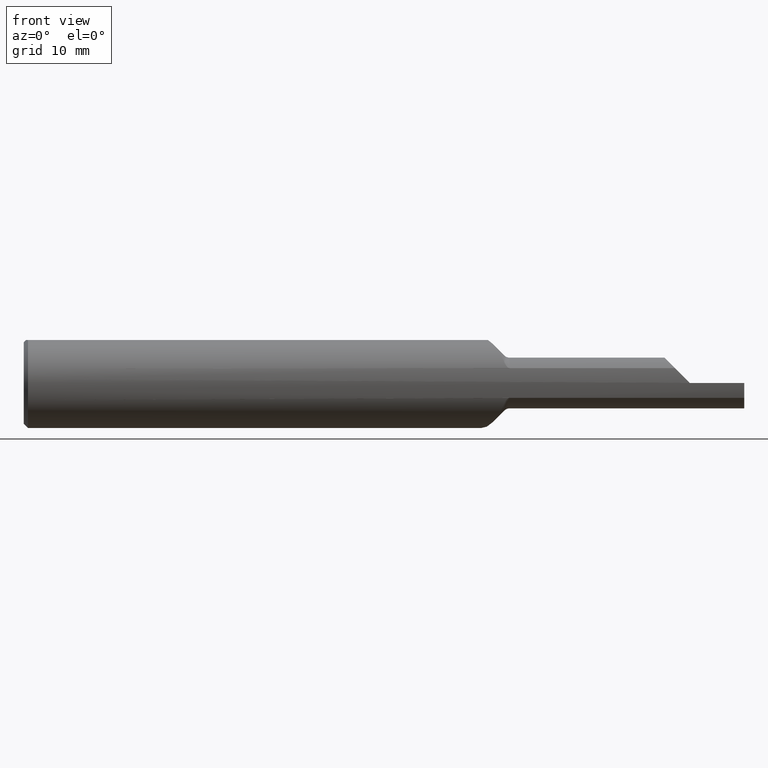
[diagram: clean part render]
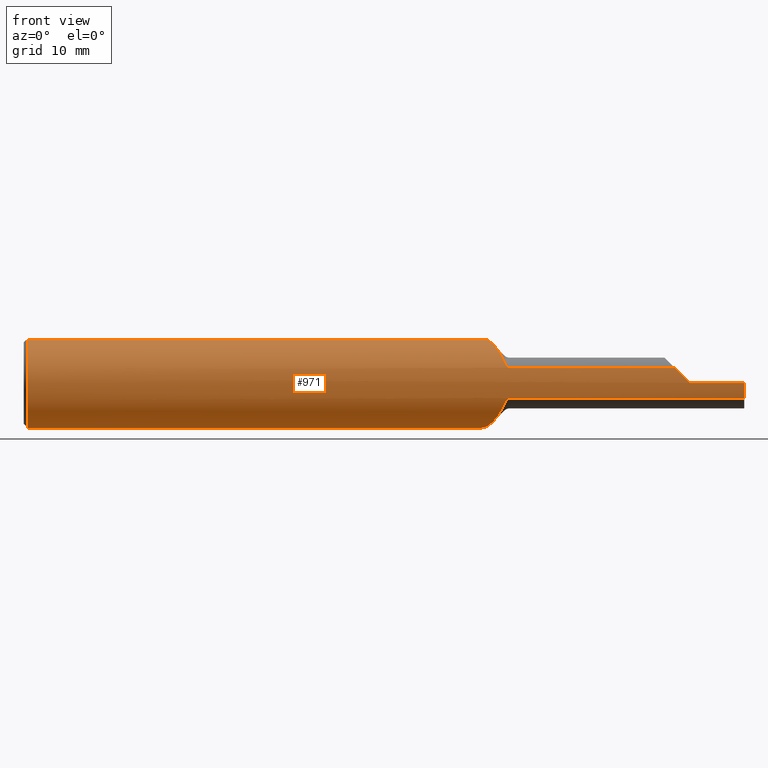
[diagram: same view with one face highlighted and labeled with its STEP entity id]
A machine part, front view. The second image highlights one B-rep face of the part: STEP entity #971.
In plain terms, the highlighted cylindrical surface (partial cylindrical patch) has radius 3.9649 mm, axis along (-1, -0, -0).
Its self-contained STEP definition (entity closure, byte-faithful):
#5 = B_SPLINE_CURVE_WITH_KNOTS ( 'NONE', 3,
 ( #135, #721, #313, #1014, #145, #67, #70, #228 ),
 .UNSPECIFIED., .F., .F.,
 ( 4, 2, 2, 4 ),
 ( 0.0009159196454856685611, 0.002174632397914928565, 0.002803988774129558947, 0.003433345150344188895 ),
 .UNSPECIFIED. ) ;
#7 = EDGE_CURVE ( 'NONE', #907, #171, #895, .T. ) ;
#13 = VERTEX_POINT ( 'NONE', #753 ) ;
#14 = VECTOR ( 'NONE', #52, 39.37007874015748143 ) ;
#24 = CARTESIAN_POINT ( 'NONE',  ( 2.500000000000000000, 0.000000000000000000, 0.000000000000000000 ) ) ;
#25 = CARTESIAN_POINT ( 'NONE',  ( 1.685355339059326996, -0.1472695137976348101, -0.05175809410911725444 ) ) ;
#29 = CARTESIAN_POINT ( 'NONE',  ( 1.532687899053011504, 0.1503590421569865054, 0.04344544607852132700 ) ) ;
#37 = CARTESIAN_POINT ( 'NONE',  ( 1.533879873719947717, 0.1467490068820048454, 0.05438688777439014410 ) ) ;
#38 = CARTESIAN_POINT ( 'NONE',  ( 0.01499999999999970281, 0.000000000000000000, -0.1560999999999999888 ) ) ;
#41 = EDGE_CURVE ( 'NONE', #719, #967, #238, .T. ) ;
#42 = CARTESIAN_POINT ( 'NONE',  ( 1.675397329852515771, -0.1449096853272189289, 0.05807563396208118012 ) ) ;
#44 = CARTESIAN_POINT ( 'NONE',  ( 1.530767765083626886, 0.1561983557981438675, 0.01003359400291371079 ) ) ;
#52 = DIRECTION ( 'NONE',  ( -1.000000000000000000, -0.000000000000000000, -0.000000000000000000 ) ) ;
#61 = EDGE_CURVE ( 'NONE', #434, #163, #133, .T. ) ;
#67 = CARTESIAN_POINT ( 'NONE',  ( 1.661637665821881660, -0.1307140869438640773, 0.08566718864553440893 ) ) ;
#70 = CARTESIAN_POINT ( 'NONE',  ( 1.664782188141721075, -0.1348230305271990170, 0.07906715129515250184 ) ) ;
#73 = ORIENTED_EDGE ( 'NONE', *, *, #756, .T. ) ;
#77 = EDGE_CURVE ( 'NONE', #138, #267, #934, .T. ) ;
#78 = ORIENTED_EDGE ( 'NONE', *, *, #41, .T. ) ;
#85 = CARTESIAN_POINT ( 'NONE',  ( 1.626706199700792776, -0.07609999999999965403, -0.1362938002992067077 ) ) ;
#90 = CARTESIAN_POINT ( 'NONE',  ( 1.630329930302383934, -0.08259003961828272067, -0.1326700696976159666 ) ) ;
#91 = CARTESIAN_POINT ( 'NONE',  ( 1.671402990581742909, -0.1425015136695788887, -0.06385971556122843618 ) ) ;
#93 = ORIENTED_EDGE ( 'NONE', *, *, #61, .F. ) ;
#95 = CARTESIAN_POINT ( 'NONE',  ( 1.667677669529663564, -0.1384498903659921176, -0.07210296705160437747 ) ) ;
#99 = ORIENTED_EDGE ( 'NONE', *, *, #378, .F. ) ;
#101 = LINE ( 'NONE', #569, #608 ) ;
#102 = CARTESIAN_POINT ( 'NONE',  ( 1.548311627111805810, 0.1046679885198931043, -0.1159372447474033979 ) ) ;
#104 = CARTESIAN_POINT ( 'NONE',  ( 2.500000000000000000, 0.000000000000000000, 0.000000000000000000 ) ) ;
#109 = ORIENTED_EDGE ( 'NONE', *, *, #551, .F. ) ;
#110 = DIRECTION ( 'NONE',  ( -1.000000000000000000, -0.000000000000000000, -0.000000000000000000 ) ) ;
#118 = CARTESIAN_POINT ( 'NONE',  ( 1.566100644809369280, 0.05646901596201918394, 0.1459231650556713500 ) ) ;
#119 = EDGE_CURVE ( 'NONE', #564, #667, #859, .T. ) ;
#125 = ORIENTED_EDGE ( 'NONE', *, *, #166, .F. ) ;
#127 = VECTOR ( 'NONE', #611, 39.37007874015748143 ) ;
#133 = B_SPLINE_CURVE_WITH_KNOTS ( 'NONE', 3,
 ( #839, #505, #897, #666, #983, #261, #273, #585, #830, #429, #590, #186, #513, #102, #433, #758, #991, #890, #452, #359, #363, #457, #777, #44, #372, #29, #37, #606, #1009, #848, #196, #696, #192, #1011, #118, #212 ),
 .UNSPECIFIED., .F., .F.,
 ( 4, 2, 2, 2, 2, 2, 2, 2, 2, 2, 2, 2, 2, 2, 2, 2, 2, 4 ),
 ( 0.003110930994557959892, 0.003973681353903181675, 0.004836431713248403458, 0.005699182072593624374, 0.006561932431938847024, 0.007424682791284067940, 0.008287433150629290590, 0.008718808330301900181, 0.009150183509974509771, 0.01001293386931973589, 0.01087568422866495854, 0.01173843458801018466, 0.01260118494735540905, 0.01346393530670063343, 0.01432668566604585782, 0.01518943602539108220, 0.01605218638473630832, 0.01691493674408153097 ),
 .UNSPECIFIED. ) ;
#135 = CARTESIAN_POINT ( 'NONE',  ( 1.626706199700792776, -0.07609999999999968179, 0.1362938002992067077 ) ) ;
#138 = VERTEX_POINT ( 'NONE', #923 ) ;
#145 = CARTESIAN_POINT ( 'NONE',  ( 1.655130186158419781, -0.1217681345905090029, 0.09796714313659106443 ) ) ;
#153 = VERTEX_POINT ( 'NONE', #521 ) ;
#163 = VERTEX_POINT ( 'NONE', #563 ) ;
#166 = EDGE_CURVE ( 'NONE', #13, #153, #5, .T. ) ;
#168 = CARTESIAN_POINT ( 'NONE',  ( 1.616189882256011678, -0.05672020887657765187, 0.1458452949029919177 ) ) ;
#171 = VERTEX_POINT ( 'NONE', #878 ) ;
#183 = CARTESIAN_POINT ( 'NONE',  ( 1.633995743743775542, -0.08889203247636665028, -0.1285362261915931614 ) ) ;
#186 = CARTESIAN_POINT ( 'NONE',  ( 1.556062627151268751, 0.08312634177226713161, -0.1325705789283350144 ) ) ;
#192 = CARTESIAN_POINT ( 'NONE',  ( 1.555320778875575849, 0.08515054058264721892, 0.1312731220610433847 ) ) ;
#196 = CARTESIAN_POINT ( 'NONE',  ( 1.546141080797369671, 0.1107799545225836152, 0.1105230445280570434 ) ) ;
#197 = CARTESIAN_POINT ( 'NONE',  ( 1.671394371802470413, -0.1424943515107291725, 0.06387577345490039193 ) ) ;
#211 = B_SPLINE_CURVE_WITH_KNOTS ( 'NONE', 3,
 ( #264, #168, #255, #417 ),
 .UNSPECIFIED., .F., .F.,
 ( 4, 4 ),
 ( 7.382152500697293703E-07, 0.0009159196454856685611 ),
 .UNSPECIFIED. ) ;
#212 = CARTESIAN_POINT ( 'NONE',  ( 1.570144386278151449, 0.04622120725381383827, 0.1490999999999999270 ) ) ;
#228 = CARTESIAN_POINT ( 'NONE',  ( 1.667677669529663786, -0.1384498903659932556, 0.07210296705160389175 ) ) ;
#229 = ORIENTED_EDGE ( 'NONE', *, *, #119, .F. ) ;
#230 = CARTESIAN_POINT ( 'NONE',  ( 1.667677669529663564, -0.1384498903659921176, -0.07210296705160437747 ) ) ;
#236 = CARTESIAN_POINT ( 'NONE',  ( 2.310000000000000053, 0.000000000000000000, 0.000000000000000000 ) ) ;
#238 = B_SPLINE_CURVE_WITH_KNOTS ( 'NONE', 3,
 ( #501, #910, #91, #746, #654, #496, #250, #25 ),
 .UNSPECIFIED., .F., .F.,
 ( 4, 2, 2, 4 ),
 ( 0.000000000000000000, 0.0003764161146858584347, 0.0005646241720287880315, 0.0007528322293717177368 ),
 .UNSPECIFIED. ) ;
#250 = CARTESIAN_POINT ( 'NONE',  ( 1.682838898917943693, -0.1472695137977211854, -0.05175809410905148067 ) ) ;
#255 = CARTESIAN_POINT ( 'NONE',  ( 1.621442227582329920, -0.06667231583844418497, 0.1415577724176695362 ) ) ;
#258 = ORIENTED_EDGE ( 'NONE', *, *, #77, .T. ) ;
#261 = CARTESIAN_POINT ( 'NONE',  ( 1.592729287374496261, -0.007807587848976422530, -0.1562429486449703753 ) ) ;
#264 = CARTESIAN_POINT ( 'NONE',  ( 1.610935696970098308, -0.04622120725381383133, 0.1490999999999999270 ) ) ;
#267 = VERTEX_POINT ( 'NONE', #1027 ) ;
#268 = CYLINDRICAL_SURFACE ( 'NONE', #560, 0.1560999999999999888 ) ;
#269 = EDGE_CURVE ( 'NONE', #267, #907, #270, .T. ) ;
#270 = CIRCLE ( 'NONE', #373, 0.1560999999999999888 ) ;
#272 = CIRCLE ( 'NONE', #338, 0.1560999999999999888 ) ;
#273 = CARTESIAN_POINT ( 'NONE',  ( 1.588181447201820973, 0.002519520737367613068, -0.1564306795616402512 ) ) ;
#276 = CARTESIAN_POINT ( 'NONE',  ( 1.676886662688135132, -0.1456379114884257531, 0.05621074875361053297 ) ) ;
#281 = CARTESIAN_POINT ( 'NONE',  ( 1.682828737658168539, -0.1472695137976347823, 0.05175809410911724751 ) ) ;
#313 = CARTESIAN_POINT ( 'NONE',  ( 1.641317973311123390, -0.1011842763913274740, 0.1198081184973930069 ) ) ;
#338 = AXIS2_PLACEMENT_3D ( 'NONE', #236, #562, #985 ) ;
#343 = ORIENTED_EDGE ( 'NONE', *, *, #1043, .F. ) ;
#348 = EDGE_CURVE ( 'NONE', #765, #723, #101, .T. ) ;
#353 = CARTESIAN_POINT ( 'NONE',  ( 0.01499999999999970281, 0.000000000000000000, 0.000000000000000000 ) ) ;
#359 = CARTESIAN_POINT ( 'NONE',  ( 1.534215880784538744, 0.1457367839870742643, -0.05704242602552606761 ) ) ;
#363 = CARTESIAN_POINT ( 'NONE',  ( 1.532957570238010936, 0.1495426852631769610, -0.04616949105331313863 ) ) ;
#370 = LINE ( 'NONE', #690, #643 ) ;
#372 = CARTESIAN_POINT ( 'NONE',  ( 1.531141773156916130, 0.1550540061005035442, 0.02129797022049680078 ) ) ;
#373 = AXIS2_PLACEMENT_3D ( 'NONE', #945, #884, #482 ) ;
#377 = ORIENTED_EDGE ( 'NONE', *, *, #423, .F. ) ;
#378 = EDGE_CURVE ( 'NONE', #719, #434, #527, .T. ) ;
#401 = ORIENTED_EDGE ( 'NONE', *, *, #1008, .T. ) ;
#402 = B_SPLINE_CURVE_WITH_KNOTS ( 'NONE', 3,
 ( #515, #281, #841, #276, #42, #197, #850, #929 ),
 .UNSPECIFIED., .F., .F.,
 ( 4, 2, 2, 4 ),
 ( 0.000000000000000000, 0.0001888187950792425903, 0.0003776375901584851807, 0.0007552751803169698193 ),
 .UNSPECIFIED. ) ;
#403 = ORIENTED_EDGE ( 'NONE', *, *, #7, .T. ) ;
#417 = CARTESIAN_POINT ( 'NONE',  ( 1.626706199700792776, -0.07609999999999968179, 0.1362938002992067077 ) ) ;
#423 = EDGE_CURVE ( 'NONE', #138, #13, #211, .T. ) ;
#429 = CARTESIAN_POINT ( 'NONE',  ( 1.567010607088304308, 0.05412176561188304647, -0.1467967206887914045 ) ) ;
#433 = CARTESIAN_POINT ( 'NONE',  ( 1.546899741308043419, 0.1086669464458839968, -0.1122013845914638236 ) ) ;
#434 = VERTEX_POINT ( 'NONE', #85 ) ;
#435 = CARTESIAN_POINT ( 'NONE',  ( 2.500000000000000000, -0.1472695137976347546, -0.05175809410911733771 ) ) ;
#452 = CARTESIAN_POINT ( 'NONE',  ( 1.537449876678831373, 0.1360829398674953394, -0.07729477376118260024 ) ) ;
#457 = CARTESIAN_POINT ( 'NONE',  ( 1.531280914347882716, 0.1546295128890213255, -0.02417333993364552056 ) ) ;
#474 = CIRCLE ( 'NONE', #913, 0.1560999999999999888 ) ;
#476 = CARTESIAN_POINT ( 'NONE',  ( 2.048999999999999932, -0.1472695137976348101, -0.05175809410911725444 ) ) ;
#482 = DIRECTION ( 'NONE',  ( 0.000000000000000000, 0.000000000000000000, -1.000000000000000000 ) ) ;
#493 = ORIENTED_EDGE ( 'NONE', *, *, #675, .T. ) ;
#496 = CARTESIAN_POINT ( 'NONE',  ( 1.680546948345776226, -0.1468138937758310947, -0.05306286877905344590 ) ) ;
#501 = CARTESIAN_POINT ( 'NONE',  ( 1.667677669529663564, -0.1384498903659921176, -0.07210296705160437747 ) ) ;
#505 = CARTESIAN_POINT ( 'NONE',  ( 1.621742310192378023, -0.06720975866797349041, -0.1412576898076213228 ) ) ;
#513 = CARTESIAN_POINT ( 'NONE',  ( 1.552771044772178088, 0.09217447577905538147, -0.1264498563721425384 ) ) ;
#515 = CARTESIAN_POINT ( 'NONE',  ( 1.685355339059326996, -0.1472695137976348101, 0.05175809410911725444 ) ) ;
#519 = DIRECTION ( 'NONE',  ( 1.000000000000000000, 0.000000000000000000, 0.000000000000000000 ) ) ;
#521 = CARTESIAN_POINT ( 'NONE',  ( 1.667677669529663786, -0.1384498903659932556, 0.07210296705160389175 ) ) ;
#527 = B_SPLINE_CURVE_WITH_KNOTS ( 'NONE', 3,
 ( #95, #752, #733, #976, #669, #183, #90, #1047 ),
 .UNSPECIFIED., .F., .F.,
 ( 4, 2, 2, 4 ),
 ( 0.0005916364990676646748, 0.001851283746812811687, 0.002481107370685385789, 0.003110930994557959892 ),
 .UNSPECIFIED. ) ;
#534 = CARTESIAN_POINT ( 'NONE',  ( 2.500000000000000000, -0.04622120725381385214, 0.1490999999999999270 ) ) ;
#551 = EDGE_CURVE ( 'NONE', #765, #942, #474, .T. ) ;
#560 = AXIS2_PLACEMENT_3D ( 'NONE', #104, #110, #594 ) ;
#562 = DIRECTION ( 'NONE',  ( -1.000000000000000000, -0.000000000000000000, -0.000000000000000000 ) ) ;
#563 = CARTESIAN_POINT ( 'NONE',  ( 1.570144386278151449, 0.04622120725381383827, 0.1490999999999999270 ) ) ;
#564 = VERTEX_POINT ( 'NONE', #1007 ) ;
#569 = CARTESIAN_POINT ( 'NONE',  ( 2.500000000000000000, -0.1560999999999999888, -6.429183357567480113E-17 ) ) ;
#585 = CARTESIAN_POINT ( 'NONE',  ( 1.579319089451871605, 0.02339435974748577812, -0.1546919824194771254 ) ) ;
#590 = CARTESIAN_POINT ( 'NONE',  ( 1.563225605245128325, 0.06398529392825023920, -0.1427964609321571987 ) ) ;
#594 = DIRECTION ( 'NONE',  ( 0.000000000000000000, 0.000000000000000000, 1.000000000000000000 ) ) ;
#597 = DIRECTION ( 'NONE',  ( 1.000000000000000000, 0.000000000000000000, 0.000000000000000000 ) ) ;
#606 = CARTESIAN_POINT ( 'NONE',  ( 1.536986910343659529, 0.1374578401896123236, 0.07482343719080140898 ) ) ;
#608 = VECTOR ( 'NONE', #820, 39.37007874015748143 ) ;
#611 = DIRECTION ( 'NONE',  ( -1.000000000000000000, -0.000000000000000000, -0.000000000000000000 ) ) ;
#614 = ORIENTED_EDGE ( 'NONE', *, *, #269, .T. ) ;
#636 = VERTEX_POINT ( 'NONE', #1020 ) ;
#643 = VECTOR ( 'NONE', #1006, 39.37007874015748143 ) ;
#654 = CARTESIAN_POINT ( 'NONE',  ( 1.676913736631675311, -0.1456475296174914724, -0.05618527000029452378 ) ) ;
#657 = CARTESIAN_POINT ( 'NONE',  ( 2.500000000000000000, -0.1560999999999998500, -6.429183357567480113E-17 ) ) ;
#666 = CARTESIAN_POINT ( 'NONE',  ( 1.606998906861133225, -0.03841099848002848399, -0.1516466027304955166 ) ) ;
#667 = VERTEX_POINT ( 'NONE', #781 ) ;
#669 = CARTESIAN_POINT ( 'NONE',  ( 1.641219447814275867, -0.1007947607389276662, -0.1194310306785390935 ) ) ;
#670 = DIRECTION ( 'NONE',  ( 1.000000000000000000, -0.000000000000000000, -0.000000000000000000 ) ) ;
#675 = EDGE_CURVE ( 'NONE', #636, #667, #790, .T. ) ;
#690 = CARTESIAN_POINT ( 'NONE',  ( 2.500000000000000000, 0.04622120725381385214, 0.1490999999999999270 ) ) ;
#696 = CARTESIAN_POINT ( 'NONE',  ( 1.552027254221677977, 0.09423401906602353606, 0.1249299457553748188 ) ) ;
#703 = CARTESIAN_POINT ( 'NONE',  ( 2.310000000000000053, -0.1560999999999999333, -6.429183357567478880E-17 ) ) ;
#719 = VERTEX_POINT ( 'NONE', #230 ) ;
#721 = CARTESIAN_POINT ( 'NONE',  ( 1.633946107127930869, -0.08906655055268092314, 0.1290538928720690592 ) ) ;
#723 = VERTEX_POINT ( 'NONE', #703 ) ;
#733 = CARTESIAN_POINT ( 'NONE',  ( 1.655216021855614672, -0.1221386240569960896, -0.09836120827692231006 ) ) ;
#746 = CARTESIAN_POINT ( 'NONE',  ( 1.675408687754749604, -0.1449155519252132152, -0.05806097206929426713 ) ) ;
#752 = CARTESIAN_POINT ( 'NONE',  ( 1.661957913228202299, -0.1312853634227895139, -0.08586007040493345843 ) ) ;
#753 = CARTESIAN_POINT ( 'NONE',  ( 1.626706199700792776, -0.07609999999999968179, 0.1362938002992067077 ) ) ;
#756 = EDGE_CURVE ( 'NONE', #723, #636, #272, .T. ) ;
#758 = CARTESIAN_POINT ( 'NONE',  ( 1.544222012668610367, 0.1163179709796763883, -0.1042486718442271476 ) ) ;
#764 = VECTOR ( 'NONE', #597, 39.37007874015748143 ) ;
#765 = VERTEX_POINT ( 'NONE', #657 ) ;
#767 = CARTESIAN_POINT ( 'NONE',  ( 1.685355339059326996, -0.1472695137976348101, -0.05175809410911725444 ) ) ;
#777 = CARTESIAN_POINT ( 'NONE',  ( 1.530836519003266449, 0.1559885724490455705, -0.01289048594769511523 ) ) ;
#781 = CARTESIAN_POINT ( 'NONE',  ( 2.259141905890882374, -0.1472695137976348934, 0.05175809410911716424 ) ) ;
#787 = CARTESIAN_POINT ( 'NONE',  ( 2.259141905890882374, -0.1472695137976348934, 0.05175809410911716424 ) ) ;
#790 =( BOUNDED_CURVE ( )  B_SPLINE_CURVE ( 3, ( #883, #1010, #1026, #787 ),
 .UNSPECIFIED., .F., .T. ) 
 B_SPLINE_CURVE_WITH_KNOTS ( ( 4, 4 ),
 ( 4.718154547241086405, 5.050356325447886263 ),
 .UNSPECIFIED. ) 
 CURVE ( )  GEOMETRIC_REPRESENTATION_ITEM ( )  RATIONAL_B_SPLINE_CURVE ( ( 1.000000000000000000, 0.9908246226888747232, 0.9908246226888747232, 1.000000000000000000 ) ) 
 REPRESENTATION_ITEM ( '' )  );
#820 = DIRECTION ( 'NONE',  ( -1.000000000000000000, -0.000000000000000000, -0.000000000000000000 ) ) ;
#830 = CARTESIAN_POINT ( 'NONE',  ( 1.575032927891206525, 0.03388377653998506794, -0.1527427000066418350 ) ) ;
#839 = CARTESIAN_POINT ( 'NONE',  ( 1.626706199700792776, -0.07609999999999965403, -0.1362938002992067077 ) ) ;
#841 = CARTESIAN_POINT ( 'NONE',  ( 1.680555050587821952, -0.1468174166703278272, 0.05305370581216171250 ) ) ;
#848 = CARTESIAN_POINT ( 'NONE',  ( 1.543525812468697911, 0.1182995851173735125, 0.1024596034648372622 ) ) ;
#850 = CARTESIAN_POINT ( 'NONE',  ( 1.669394866199428895, -0.1406008389657031066, 0.06797278198446671249 ) ) ;
#853 = CARTESIAN_POINT ( 'NONE',  ( 2.048999999999999932, -0.1472695137976348101, 0.05175809410911725444 ) ) ;
#859 = LINE ( 'NONE', #853, #764 ) ;
#878 = CARTESIAN_POINT ( 'NONE',  ( 0.01499999999999970281, 0.04622120725381385214, 0.1490999999999999270 ) ) ;
#883 = CARTESIAN_POINT ( 'NONE',  ( 2.310000000000000053, -0.1560974054877275197, 0.0009000000000000394403 ) ) ;
#884 = DIRECTION ( 'NONE',  ( 1.000000000000000000, -0.000000000000000000, -0.000000000000000000 ) ) ;
#890 = CARTESIAN_POINT ( 'NONE',  ( 1.539422301135399795, 0.1302433680280003225, -0.08676653150347675425 ) ) ;
#895 = CIRCLE ( 'NONE', #992, 0.1560999999999999888 ) ;
#897 = CARTESIAN_POINT ( 'NONE',  ( 1.616812169148768463, -0.05789496149929961033, -0.1453281471598950325 ) ) ;
#907 = VERTEX_POINT ( 'NONE', #38 ) ;
#910 = CARTESIAN_POINT ( 'NONE',  ( 1.669394273361946235, -0.1406000963815961513, -0.06797420787153335420 ) ) ;
#913 = AXIS2_PLACEMENT_3D ( 'NONE', #24, #519, #999 ) ;
#923 = CARTESIAN_POINT ( 'NONE',  ( 1.610935696970098308, -0.04622120725381383133, 0.1490999999999999270 ) ) ;
#929 = CARTESIAN_POINT ( 'NONE',  ( 1.667677669529663786, -0.1384498903659932556, 0.07210296705160389175 ) ) ;
#934 = LINE ( 'NONE', #534, #127 ) ;
#942 = VERTEX_POINT ( 'NONE', #435 ) ;
#945 = CARTESIAN_POINT ( 'NONE',  ( 0.01499999999999970281, 0.000000000000000000, 0.000000000000000000 ) ) ;
#946 = ORIENTED_EDGE ( 'NONE', *, *, #348, .T. ) ;
#967 = VERTEX_POINT ( 'NONE', #767 ) ;
#971 = ADVANCED_FACE ( 'NONE', ( #989 ), #268, .T. ) ;
#973 = DIRECTION ( 'NONE',  ( 0.000000000000000000, 0.000000000000000000, -1.000000000000000000 ) ) ;
#974 = ORIENTED_EDGE ( 'NONE', *, *, #1016, .T. ) ;
#976 = CARTESIAN_POINT ( 'NONE',  ( 1.644773551662489508, -0.1063931868924054419, -0.1144730971797991992 ) ) ;
#983 = CARTESIAN_POINT ( 'NONE',  ( 1.602112346281005184, -0.02822334644814710955, -0.1538709203994119701 ) ) ;
#985 = DIRECTION ( 'NONE',  ( 0.000000000000000000, 0.000000000000000000, 1.000000000000000000 ) ) ;
#989 = FACE_OUTER_BOUND ( 'NONE', #1034, .T. ) ;
#991 = CARTESIAN_POINT ( 'NONE',  ( 1.542948678226318426, 0.1199920007254394738, -0.1000013436810295864 ) ) ;
#992 = AXIS2_PLACEMENT_3D ( 'NONE', #353, #670, #973 ) ;
#999 = DIRECTION ( 'NONE',  ( 0.000000000000000000, 0.000000000000000000, -1.000000000000000000 ) ) ;
#1006 = DIRECTION ( 'NONE',  ( 1.000000000000000000, 0.000000000000000000, 0.000000000000000000 ) ) ;
#1007 = CARTESIAN_POINT ( 'NONE',  ( 1.685355339059326996, -0.1472695137976348101, 0.05175809410911725444 ) ) ;
#1008 = EDGE_CURVE ( 'NONE', #564, #153, #402, .T. ) ;
#1009 = CARTESIAN_POINT ( 'NONE',  ( 1.538920538248711667, 0.1317206507298688545, 0.08451291234133570529 ) ) ;
#1010 = CARTESIAN_POINT ( 'NONE',  ( 2.292634761300054613, -0.1559972839336175587, 0.01826523869994510149 ) ) ;
#1011 = CARTESIAN_POINT ( 'NONE',  ( 1.562342633379365076, 0.06631164368567235567, 0.1417251320298381911 ) ) ;
#1014 = CARTESIAN_POINT ( 'NONE',  ( 1.651747287440679557, -0.1169076187231366526, 0.1037115082629029850 ) ) ;
#1016 = EDGE_CURVE ( 'NONE', #171, #163, #370, .T. ) ;
#1017 = LINE ( 'NONE', #476, #14 ) ;
#1020 = CARTESIAN_POINT ( 'NONE',  ( 2.310000000000000053, -0.1560974054877275197, 0.0009000000000000394403 ) ) ;
#1026 = CARTESIAN_POINT ( 'NONE',  ( 2.275525075440243405, -0.1530274035976015579, 0.03537492455975604910 ) ) ;
#1027 = CARTESIAN_POINT ( 'NONE',  ( 0.01499999999999393485, -0.04622120725382292822, 0.1490999999999999270 ) ) ;
#1034 = EDGE_LOOP ( 'NONE', ( #343, #109, #946, #73, #493, #229, #401, #125, #377, #258, #614, #403, #974, #93, #99, #78 ) ) ;
#1043 = EDGE_CURVE ( 'NONE', #942, #967, #1017, .T. ) ;
#1047 = CARTESIAN_POINT ( 'NONE',  ( 1.626706199700792776, -0.07609999999999965403, -0.1362938002992067077 ) ) ;